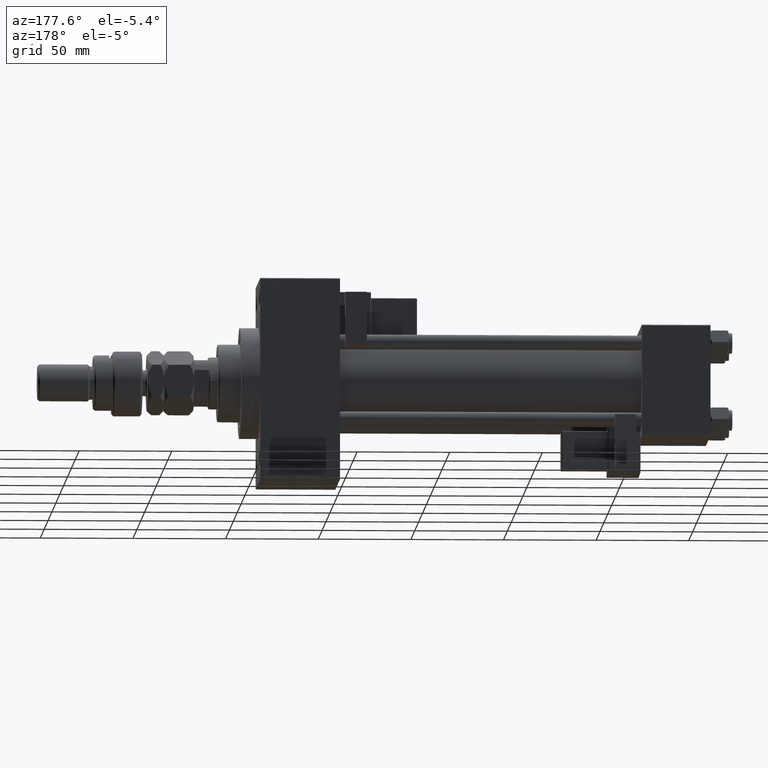
[diagram: clean part render]
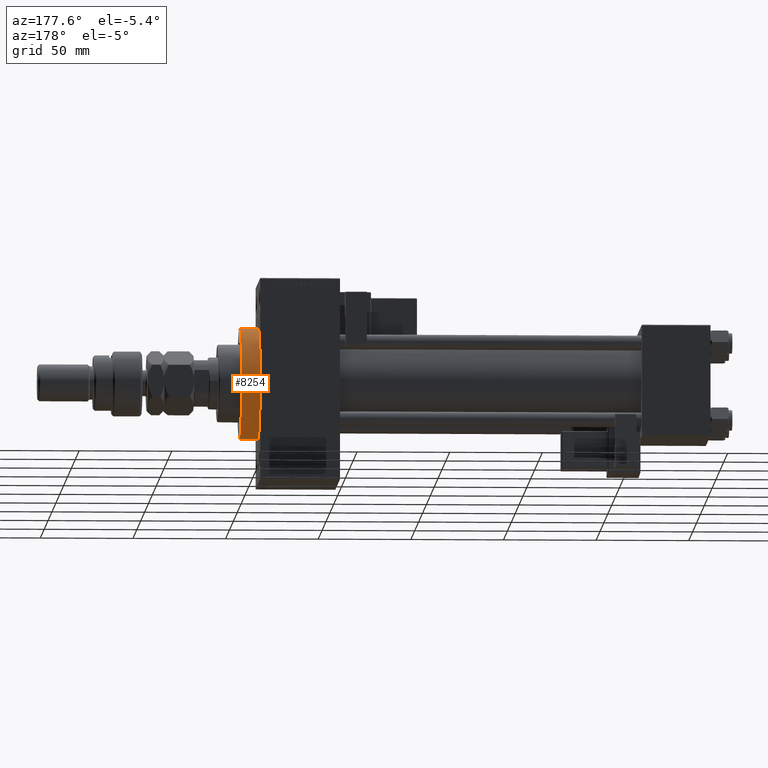
[diagram: same view with one face highlighted and labeled with its STEP entity id]
A machine part, auxiliary view. The second image highlights one B-rep face of the part: STEP entity #8254.
In plain terms, the highlighted cylindrical surface (partial cylindrical patch) has radius 30 mm, axis along (-1, -0, -0).
Its self-contained STEP definition (entity closure, byte-faithful):
#1707 = ORIENTED_EDGE ( 'NONE', *, *, #34294, .F. ) ;
#2277 = VERTEX_POINT ( 'NONE', #22662 ) ;
#3813 = VECTOR ( 'NONE', #7594, 1000.000000000000000 ) ;
#4067 = CARTESIAN_POINT ( 'NONE',  ( 253.0000000000000000, 0.000000000000000000, 0.000000000000000000 ) ) ;
#4101 = ORIENTED_EDGE ( 'NONE', *, *, #48163, .T. ) ;
#4123 = ORIENTED_EDGE ( 'NONE', *, *, #46229, .T. ) ;
#4154 = CARTESIAN_POINT ( 'NONE',  ( 253.0000000000000000, 0.000000000000000000, 30.00000000000000000 ) ) ;
#7302 = DIRECTION ( 'NONE',  ( -1.000000000000000000, -0.000000000000000000, -0.000000000000000000 ) ) ;
#7594 = DIRECTION ( 'NONE',  ( -1.000000000000000000, -0.000000000000000000, -0.000000000000000000 ) ) ;
#7793 = DIRECTION ( 'NONE',  ( -1.000000000000000000, -0.000000000000000000, -0.000000000000000000 ) ) ;
#8254 = ADVANCED_FACE ( 'NONE', ( #16818 ), #48732, .T. ) ;
#8312 = EDGE_LOOP ( 'NONE', ( #1707, #4101, #22734, #4123, #37082 ) ) ;
#11192 = EDGE_CURVE ( 'NONE', #28502, #2277, #27501, .T. ) ;
#13286 = EDGE_CURVE ( 'NONE', #21646, #22490, #26905, .T. ) ;
#14209 = VECTOR ( 'NONE', #7302, 1000.000000000000000 ) ;
#15561 = VERTEX_POINT ( 'NONE', #34726 ) ;
#16818 = FACE_OUTER_BOUND ( 'NONE', #8312, .T. ) ;
#19444 = CARTESIAN_POINT ( 'NONE',  ( 243.0000000000000000, 30.00000000000000000, 0.000000000000000000 ) ) ;
#20351 = DIRECTION ( 'NONE',  ( 0.000000000000000000, 0.000000000000000000, -1.000000000000000000 ) ) ;
#21646 = VERTEX_POINT ( 'NONE', #23901 ) ;
#22063 = CIRCLE ( 'NONE', #42582, 30.00000000000000000 ) ;
#22490 = VERTEX_POINT ( 'NONE', #19444 ) ;
#22662 = CARTESIAN_POINT ( 'NONE',  ( 243.0000000000000000, 0.000000000000000000, 30.00000000000000000 ) ) ;
#22734 = ORIENTED_EDGE ( 'NONE', *, *, #13286, .T. ) ;
#23559 = CARTESIAN_POINT ( 'NONE',  ( 253.0000000000000000, 3.673940397442059178E-15, -30.00000000000000000 ) ) ;
#23901 = CARTESIAN_POINT ( 'NONE',  ( 243.0000000000000000, 3.673940397442059178E-15, -30.00000000000000000 ) ) ;
#24072 = DIRECTION ( 'NONE',  ( 1.000000000000000000, 0.000000000000000000, 0.000000000000000000 ) ) ;
#24726 = CARTESIAN_POINT ( 'NONE',  ( 243.0000000000000000, 0.000000000000000000, 0.000000000000000000 ) ) ;
#26905 = CIRCLE ( 'NONE', #52500, 30.00000000000000000 ) ;
#27501 = LINE ( 'NONE', #27759, #14209 ) ;
#27759 = CARTESIAN_POINT ( 'NONE',  ( 253.0000000000000000, 0.000000000000000000, 30.00000000000000000 ) ) ;
#28261 = DIRECTION ( 'NONE',  ( 0.000000000000000000, 0.000000000000000000, 1.000000000000000000 ) ) ;
#28502 = VERTEX_POINT ( 'NONE', #4154 ) ;
#28969 = DIRECTION ( 'NONE',  ( 1.000000000000000000, 0.000000000000000000, 0.000000000000000000 ) ) ;
#29043 = DIRECTION ( 'NONE',  ( 0.000000000000000000, 0.000000000000000000, -1.000000000000000000 ) ) ;
#31919 = AXIS2_PLACEMENT_3D ( 'NONE', #4067, #7793, #28261 ) ;
#34204 = LINE ( 'NONE', #23559, #3813 ) ;
#34294 = EDGE_CURVE ( 'NONE', #15561, #28502, #22063, .T. ) ;
#34726 = CARTESIAN_POINT ( 'NONE',  ( 253.0000000000000000, 3.673940397442059178E-15, -30.00000000000000000 ) ) ;
#35156 = CIRCLE ( 'NONE', #41956, 30.00000000000000000 ) ;
#37082 = ORIENTED_EDGE ( 'NONE', *, *, #11192, .F. ) ;
#37745 = DIRECTION ( 'NONE',  ( 0.000000000000000000, 0.000000000000000000, -1.000000000000000000 ) ) ;
#41545 = CARTESIAN_POINT ( 'NONE',  ( 243.0000000000000000, 0.000000000000000000, 0.000000000000000000 ) ) ;
#41956 = AXIS2_PLACEMENT_3D ( 'NONE', #24726, #28969, #37745 ) ;
#42582 = AXIS2_PLACEMENT_3D ( 'NONE', #48276, #24072, #20351 ) ;
#46229 = EDGE_CURVE ( 'NONE', #22490, #2277, #35156, .T. ) ;
#48163 = EDGE_CURVE ( 'NONE', #15561, #21646, #34204, .T. ) ;
#48276 = CARTESIAN_POINT ( 'NONE',  ( 253.0000000000000000, 0.000000000000000000, 0.000000000000000000 ) ) ;
#48732 = CYLINDRICAL_SURFACE ( 'NONE', #31919, 30.00000000000000000 ) ;
#50039 = DIRECTION ( 'NONE',  ( 1.000000000000000000, 0.000000000000000000, 0.000000000000000000 ) ) ;
#52500 = AXIS2_PLACEMENT_3D ( 'NONE', #41545, #50039, #29043 ) ;